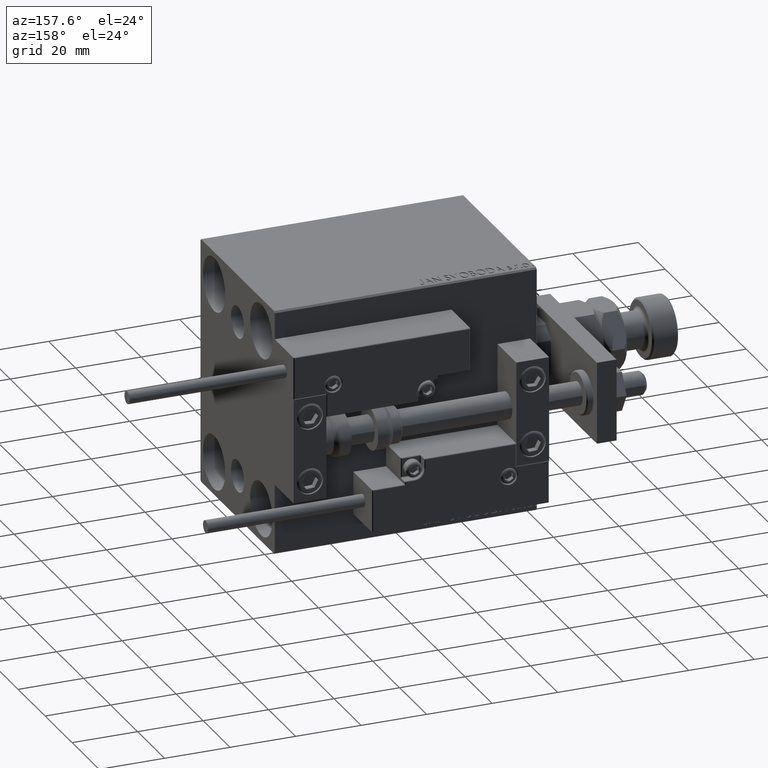
[diagram: clean part render]
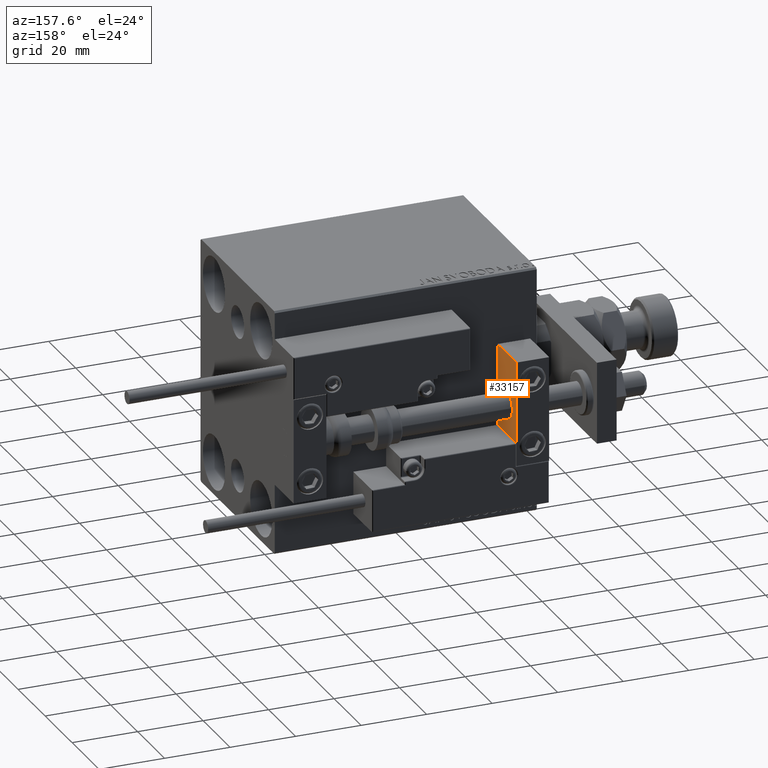
[diagram: same view with one face highlighted and labeled with its STEP entity id]
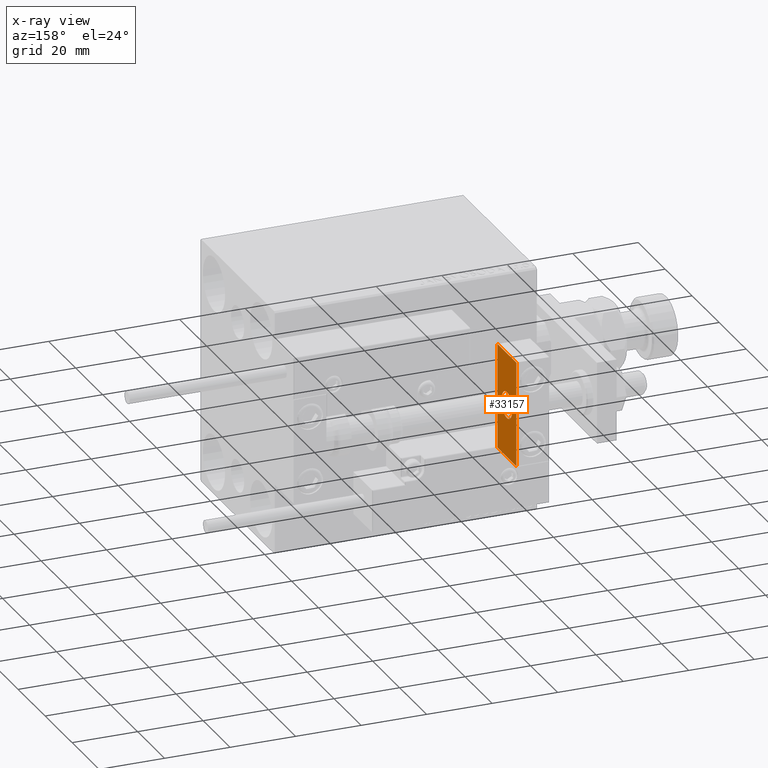
[diagram: x-ray of the same camera — body ghosted, the highlighted face saturated]
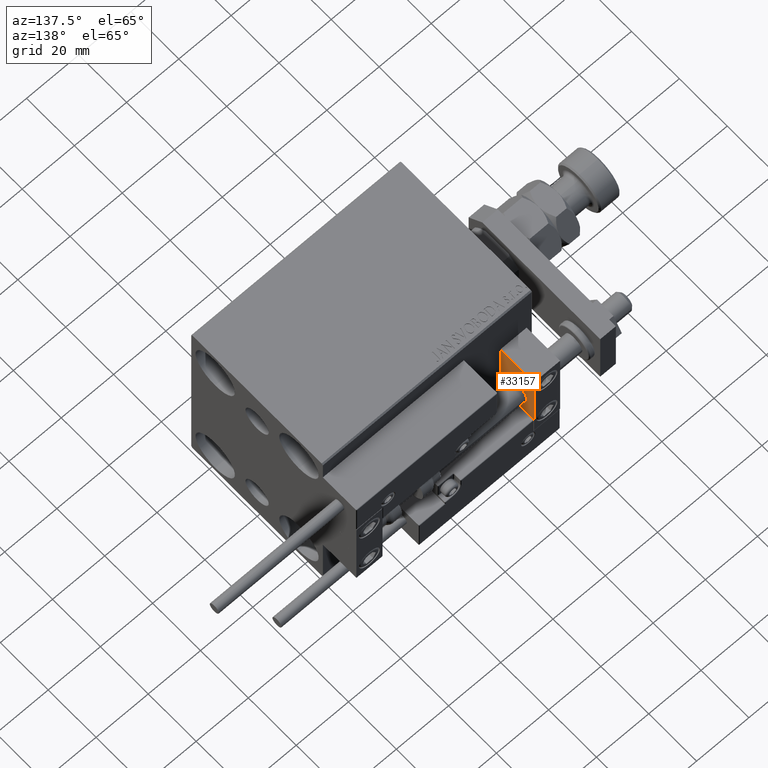
[diagram: same view with one face highlighted and labeled with its STEP entity id]
A machine part, auxiliary view. The second image highlights one B-rep face of the part: STEP entity #33157.
The next image is the same camera in x-ray: the body ghosted, the highlighted face saturated — about 0% of this face is hidden behind the body in this view.
A second angle (auxiliary view) of the same face is appended — the face is thin or edge-on in the first view.
In plain terms, the highlighted planar face has unit normal (1, 0, -0).
Its self-contained STEP definition (entity closure, byte-faithful):
#2189 = ORIENTED_EDGE ( 'NONE', *, *, #7358, .F. ) ;
#3702 = CARTESIAN_POINT ( 'NONE',  ( 0.000000000000000000, 0.000000000000000000, 4.000000000000000000 ) ) ;
#3840 = EDGE_CURVE ( 'NONE', #41724, #19627, #17435, .T. ) ;
#4818 = LINE ( 'NONE', #20713, #24851 ) ;
#4950 = VECTOR ( 'NONE', #39962, 1000.000000000000000 ) ;
#7144 = EDGE_CURVE ( 'NONE', #40522, #22566, #4818, .T. ) ;
#7358 = EDGE_CURVE ( 'NONE', #48467, #38126, #48185, .T. ) ;
#7959 = ORIENTED_EDGE ( 'NONE', *, *, #12319, .T. ) ;
#8189 = CIRCLE ( 'NONE', #43189, 4.000000000000000000 ) ;
#8464 = ORIENTED_EDGE ( 'NONE', *, *, #3840, .F. ) ;
#8647 = DIRECTION ( 'NONE',  ( -0.000000000000000000, 0.000000000000000000, 1.000000000000000000 ) ) ;
#8901 = FACE_BOUND ( 'NONE', #12180, .T. ) ;
#10766 = DIRECTION ( 'NONE',  ( 0.000000000000000000, -1.000000000000000000, 0.000000000000000000 ) ) ;
#12180 = EDGE_LOOP ( 'NONE', ( #15831, #2189 ) ) ;
#12319 = EDGE_CURVE ( 'NONE', #22566, #19627, #48326, .T. ) ;
#12600 = CARTESIAN_POINT ( 'NONE',  ( 0.000000000000000000, 7.000000000000000000, -16.00000000000000711 ) ) ;
#12995 = CARTESIAN_POINT ( 'NONE',  ( 0.000000000000000000, -7.000000000000000000, -16.00000000000000711 ) ) ;
#13096 = EDGE_CURVE ( 'NONE', #40522, #41724, #30044, .T. ) ;
#15749 = VECTOR ( 'NONE', #34289, 1000.000000000000000 ) ;
#15831 = ORIENTED_EDGE ( 'NONE', *, *, #49882, .F. ) ;
#16275 = CARTESIAN_POINT ( 'NONE',  ( 0.000000000000000000, -7.000000000000000000, 15.99999999999999289 ) ) ;
#16905 = ORIENTED_EDGE ( 'NONE', *, *, #7144, .T. ) ;
#17435 = LINE ( 'NONE', #37504, #15749 ) ;
#17554 = CARTESIAN_POINT ( 'NONE',  ( 0.000000000000000000, 7.000000000000000000, 15.99999999999999289 ) ) ;
#17840 = DIRECTION ( 'NONE',  ( 0.000000000000000000, 0.000000000000000000, 1.000000000000000000 ) ) ;
#18527 = CARTESIAN_POINT ( 'NONE',  ( 0.000000000000000000, 7.000000000000000000, -16.00000000000000711 ) ) ;
#19358 = CARTESIAN_POINT ( 'NONE',  ( 0.000000000000000000, 4.898587196589412829E-16, -4.000000000000000000 ) ) ;
#19627 = VERTEX_POINT ( 'NONE', #12995 ) ;
#20713 = CARTESIAN_POINT ( 'NONE',  ( 0.000000000000000000, 7.000000000000000000, 15.99999999999999289 ) ) ;
#22566 = VERTEX_POINT ( 'NONE', #18527 ) ;
#24149 = VECTOR ( 'NONE', #10766, 1000.000000000000000 ) ;
#24851 = VECTOR ( 'NONE', #28799, 1000.000000000000000 ) ;
#25566 = CARTESIAN_POINT ( 'NONE',  ( 0.000000000000000000, 0.000000000000000000, 0.000000000000000000 ) ) ;
#26210 = AXIS2_PLACEMENT_3D ( 'NONE', #25566, #48547, #8647 ) ;
#28799 = DIRECTION ( 'NONE',  ( 0.000000000000000000, 0.000000000000000000, -1.000000000000000000 ) ) ;
#29110 = ORIENTED_EDGE ( 'NONE', *, *, #13096, .F. ) ;
#30044 = LINE ( 'NONE', #17554, #24149 ) ;
#30830 = CARTESIAN_POINT ( 'NONE',  ( 0.000000000000000000, 0.000000000000000000, 0.000000000000000000 ) ) ;
#32880 = PLANE ( 'NONE',  #26210 ) ;
#33157 = ADVANCED_FACE ( 'NONE', ( #8901, #37301 ), #32880, .T. ) ;
#34289 = DIRECTION ( 'NONE',  ( 0.000000000000000000, 0.000000000000000000, -1.000000000000000000 ) ) ;
#36921 = CARTESIAN_POINT ( 'NONE',  ( 0.000000000000000000, 7.000000000000000000, 15.99999999999999289 ) ) ;
#37301 = FACE_OUTER_BOUND ( 'NONE', #46098, .T. ) ;
#37362 = AXIS2_PLACEMENT_3D ( 'NONE', #41052, #49925, #17840 ) ;
#37504 = CARTESIAN_POINT ( 'NONE',  ( 0.000000000000000000, -7.000000000000000000, 15.99999999999999289 ) ) ;
#38126 = VERTEX_POINT ( 'NONE', #3702 ) ;
#38916 = DIRECTION ( 'NONE',  ( -1.000000000000000000, -0.000000000000000000, -0.000000000000000000 ) ) ;
#39962 = DIRECTION ( 'NONE',  ( 0.000000000000000000, -1.000000000000000000, 0.000000000000000000 ) ) ;
#40522 = VERTEX_POINT ( 'NONE', #36921 ) ;
#41052 = CARTESIAN_POINT ( 'NONE',  ( 0.000000000000000000, 0.000000000000000000, 0.000000000000000000 ) ) ;
#41724 = VERTEX_POINT ( 'NONE', #16275 ) ;
#43189 = AXIS2_PLACEMENT_3D ( 'NONE', #30830, #38916, #50934 ) ;
#46098 = EDGE_LOOP ( 'NONE', ( #8464, #29110, #16905, #7959 ) ) ;
#48185 = CIRCLE ( 'NONE', #37362, 4.000000000000000000 ) ;
#48326 = LINE ( 'NONE', #12600, #4950 ) ;
#48467 = VERTEX_POINT ( 'NONE', #19358 ) ;
#48547 = DIRECTION ( 'NONE',  ( -1.000000000000000000, 0.000000000000000000, -0.000000000000000000 ) ) ;
#49882 = EDGE_CURVE ( 'NONE', #38126, #48467, #8189, .T. ) ;
#49925 = DIRECTION ( 'NONE',  ( -1.000000000000000000, -0.000000000000000000, -0.000000000000000000 ) ) ;
#50934 = DIRECTION ( 'NONE',  ( 0.000000000000000000, 0.000000000000000000, 1.000000000000000000 ) ) ;